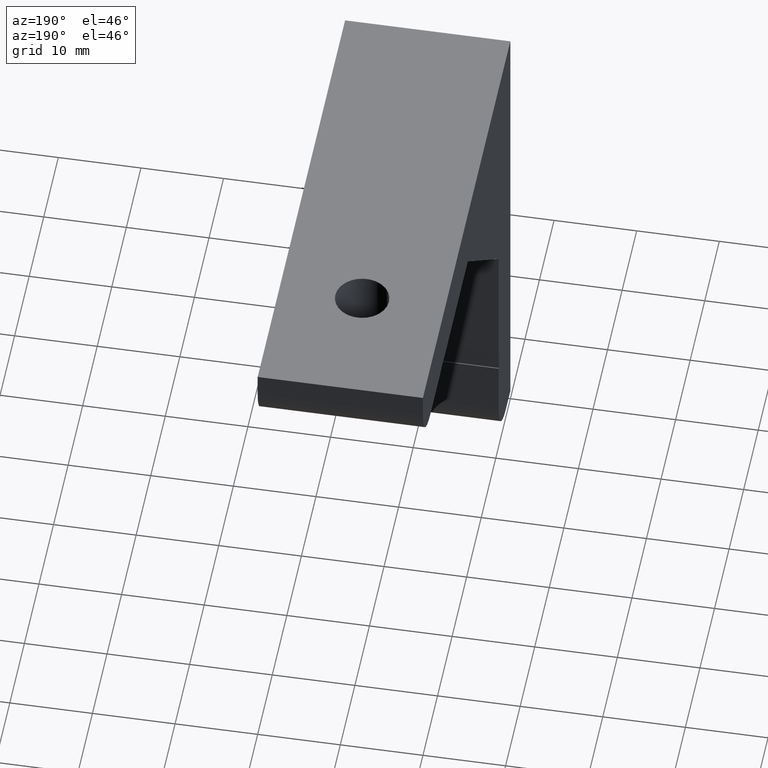
[diagram: clean part render]
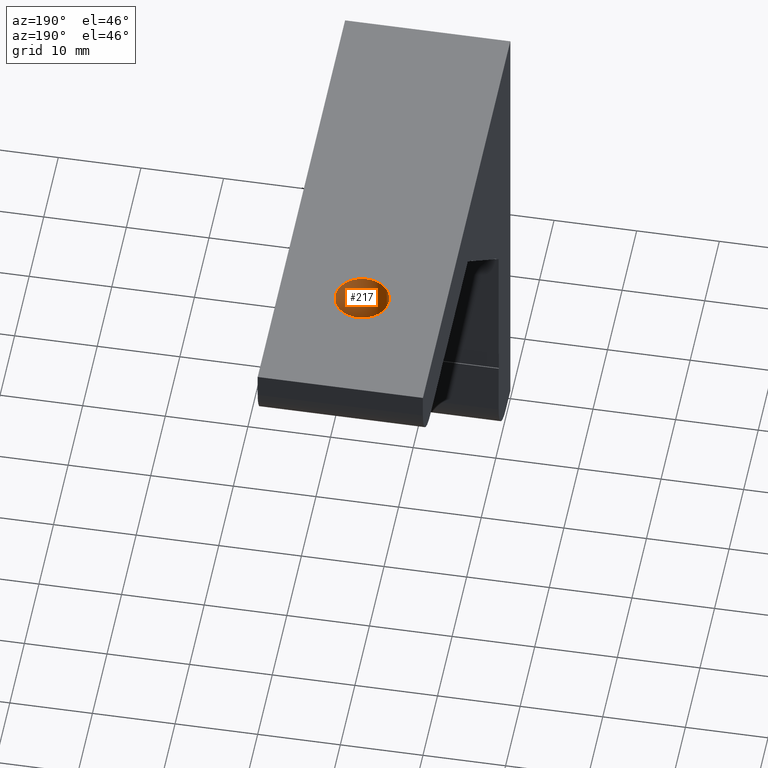
[diagram: same view with one face highlighted and labeled with its STEP entity id]
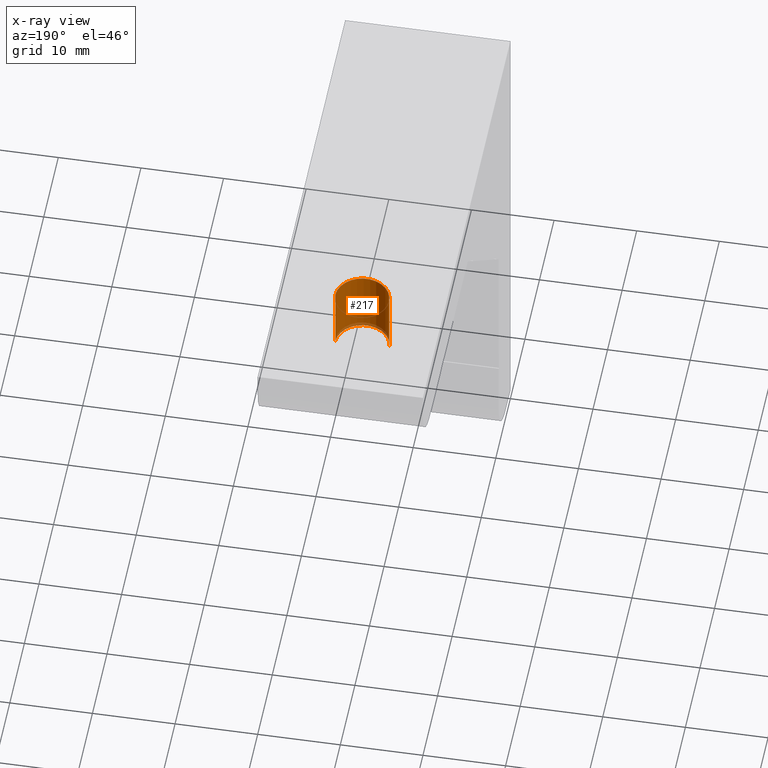
[diagram: x-ray of the same camera — body ghosted, the highlighted face saturated]
A machine part, auxiliary view. The second image highlights one B-rep face of the part: STEP entity #217.
The next image is the same camera in x-ray: the body ghosted, the highlighted face saturated — about 6% of this face is hidden behind the body in this view.
In plain terms, the highlighted cylindrical surface (edge-blend (fillet) strip) has radius 3.25 mm, axis along (0, 0, -1).
Its self-contained STEP definition (entity closure, byte-faithful):
#1 = DIRECTION ( 'NONE',  ( 0.0000000000000000000, 0.0000000000000000000, -1.000000000000000000 ) ) ;
#2 = DIRECTION ( 'NONE',  ( -1.000000000000000000, 0.0000000000000000000, 0.0000000000000000000 ) ) ;
#217 = ADVANCED_FACE ( 'NONE', ( #1302 ), #1303, .F. ) ;
#420 = CARTESIAN_POINT ( 'NONE',  ( 6.749999999999997300, 45.00000000000000000, 0.0000000000000000000 ) ) ;
#466 = CARTESIAN_POINT ( 'NONE',  ( 13.25000000000000400, 45.00000000000000000, 0.0000000000000000000 ) ) ;
#475 = CARTESIAN_POINT ( 'NONE',  ( 6.749999999999997300, 45.00000000000000000, -8.000000000000000000 ) ) ;
#491 = CARTESIAN_POINT ( 'NONE',  ( 13.25000000000000400, 45.00000000000000000, -8.000000000000000000 ) ) ;
#518 = CARTESIAN_POINT ( 'NONE',  ( 13.25000000000000400, 45.00000000000000000, 0.0000000000000000000 ) ) ;
#519 = DIRECTION ( 'NONE',  ( 0.0000000000000000000, 0.0000000000000000000, -1.000000000000000000 ) ) ;
#520 = CARTESIAN_POINT ( 'NONE',  ( 10.00000000000000000, 45.00000000000000000, 0.0000000000000000000 ) ) ;
#521 = DIRECTION ( 'NONE',  ( -0.0000000000000000000, -0.0000000000000000000, 1.000000000000000000 ) ) ;
#522 = DIRECTION ( 'NONE',  ( -1.000000000000000000, 0.0000000000000000000, 0.0000000000000000000 ) ) ;
#523 = CARTESIAN_POINT ( 'NONE',  ( 6.749999999999997300, 45.00000000000000000, 0.0000000000000000000 ) ) ;
#524 = DIRECTION ( 'NONE',  ( 0.0000000000000000000, 0.0000000000000000000, -1.000000000000000000 ) ) ;
#525 = CARTESIAN_POINT ( 'NONE',  ( 10.00000000000000000, 45.00000000000000000, -8.000000000000000000 ) ) ;
#556 = ORIENTED_EDGE ( 'NONE', *, *, #1009, .F. ) ;
#558 = ORIENTED_EDGE ( 'NONE', *, *, #1010, .T. ) ;
#559 = ORIENTED_EDGE ( 'NONE', *, *, #1007, .T. ) ;
#560 = ORIENTED_EDGE ( 'NONE', *, *, #1008, .T. ) ;
#587 = EDGE_LOOP ( 'NONE', ( #560, #559, #558, #556 ) ) ;
#706 = DIRECTION ( 'NONE',  ( -1.000000000000000000, 0.0000000000000000000, 0.0000000000000000000 ) ) ;
#707 = DIRECTION ( 'NONE',  ( 0.0000000000000000000, 0.0000000000000000000, -1.000000000000000000 ) ) ;
#708 = CARTESIAN_POINT ( 'NONE',  ( 10.00000000000000000, 45.00000000000000000, 0.0000000000000000000 ) ) ;
#745 = AXIS2_PLACEMENT_3D ( 'NONE', #708, #707, #706 ) ;
#765 = AXIS2_PLACEMENT_3D ( 'NONE', #520, #521, #522 ) ;
#766 = AXIS2_PLACEMENT_3D ( 'NONE', #525, #1, #2 ) ;
#880 = VERTEX_POINT ( 'NONE', #420 ) ;
#969 = VERTEX_POINT ( 'NONE', #466 ) ;
#978 = VERTEX_POINT ( 'NONE', #475 ) ;
#994 = VERTEX_POINT ( 'NONE', #491 ) ;
#1007 = EDGE_CURVE ( 'NONE', #969, #994, #1058, .T. ) ;
#1008 = EDGE_CURVE ( 'NONE', #880, #969, #1052, .T. ) ;
#1009 = EDGE_CURVE ( 'NONE', #880, #978, #1054, .T. ) ;
#1010 = EDGE_CURVE ( 'NONE', #994, #978, #1047, .T. ) ;
#1047 = CIRCLE ( 'NONE', #766, 3.250000000000002700 ) ;
#1051 = VECTOR ( 'NONE', #524, 1000.000000000000000 ) ;
#1052 = CIRCLE ( 'NONE', #765, 3.250000000000002700 ) ;
#1053 = VECTOR ( 'NONE', #519, 1000.000000000000000 ) ;
#1054 = LINE ( 'NONE', #523, #1051 ) ;
#1058 = LINE ( 'NONE', #518, #1053 ) ;
#1302 = FACE_OUTER_BOUND ( 'NONE', #587, .T. ) ;
#1303 = CYLINDRICAL_SURFACE ( 'NONE', #745, 3.250000000000002700 ) ;